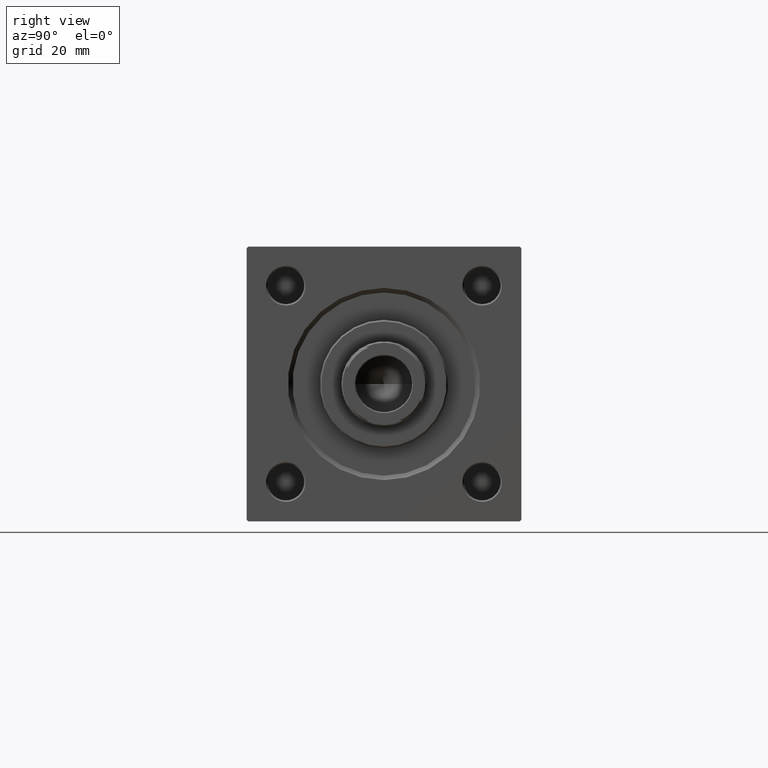
[diagram: clean part render]
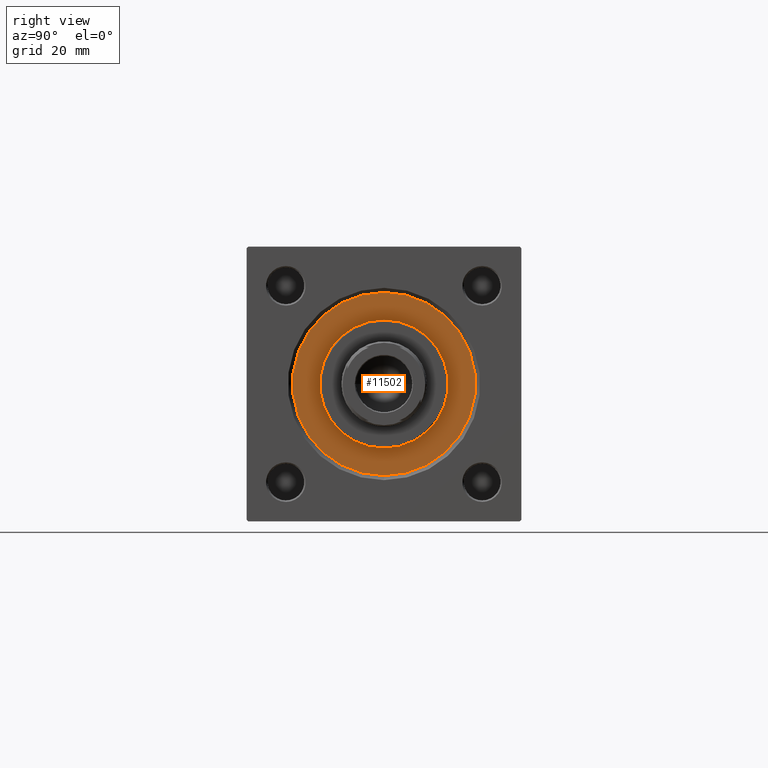
[diagram: same view with one face highlighted and labeled with its STEP entity id]
A machine part, right view. The second image highlights one B-rep face of the part: STEP entity #11502.
In plain terms, the highlighted planar face has unit normal (1, 0, 0).
Its self-contained STEP definition (entity closure, byte-faithful):
#3104 = VERTEX_POINT ( 'NONE', #34823 ) ;
#3107 = EDGE_CURVE ( 'NONE', #39828, #6970, #15510, .T. ) ;
#3173 = EDGE_LOOP ( 'NONE', ( #36676, #42989 ) ) ;
#4813 = CARTESIAN_POINT ( 'NONE',  ( -21.00000000000000000, 0.000000000000000000, 28.69999999999999929 ) ) ;
#6120 = FACE_BOUND ( 'NONE', #10961, .T. ) ;
#6970 = VERTEX_POINT ( 'NONE', #14126 ) ;
#7167 = DIRECTION ( 'NONE',  ( 0.000000000000000000, 0.000000000000000000, 1.000000000000000000 ) ) ;
#9196 = EDGE_CURVE ( 'NONE', #3104, #19670, #40049, .T. ) ;
#10060 = CIRCLE ( 'NONE', #38467, 30.00000000000000000 ) ;
#10694 = EDGE_CURVE ( 'NONE', #19670, #3104, #10060, .T. ) ;
#10961 = EDGE_LOOP ( 'NONE', ( #46789, #12538 ) ) ;
#11225 = CARTESIAN_POINT ( 'NONE',  ( 0.000000000000000000, 0.000000000000000000, 28.69999999999999929 ) ) ;
#11467 = EDGE_CURVE ( 'NONE', #6970, #39828, #35955, .T. ) ;
#11502 = ADVANCED_FACE ( 'NONE', ( #6120, #39912 ), #13984, .T. ) ;
#12538 = ORIENTED_EDGE ( 'NONE', *, *, #11467, .F. ) ;
#13984 = PLANE ( 'NONE',  #36742 ) ;
#14126 = CARTESIAN_POINT ( 'NONE',  ( 21.00000000000000000, 2.571758278209441661E-15, 28.69999999999999929 ) ) ;
#15510 = CIRCLE ( 'NONE', #21996, 21.00000000000000000 ) ;
#17293 = CARTESIAN_POINT ( 'NONE',  ( 0.000000000000000000, 0.000000000000000000, 28.69999999999999929 ) ) ;
#18614 = DIRECTION ( 'NONE',  ( 1.000000000000000000, 0.000000000000000000, 0.000000000000000000 ) ) ;
#19670 = VERTEX_POINT ( 'NONE', #45997 ) ;
#21373 = AXIS2_PLACEMENT_3D ( 'NONE', #50075, #39649, #35834 ) ;
#21996 = AXIS2_PLACEMENT_3D ( 'NONE', #11225, #7167, #18614 ) ;
#22422 = DIRECTION ( 'NONE',  ( 1.000000000000000000, 0.000000000000000000, 0.000000000000000000 ) ) ;
#34823 = CARTESIAN_POINT ( 'NONE',  ( 30.00000000000000000, 3.673940397442059178E-15, 28.69999999999999929 ) ) ;
#35834 = DIRECTION ( 'NONE',  ( 1.000000000000000000, 0.000000000000000000, 0.000000000000000000 ) ) ;
#35955 = CIRCLE ( 'NONE', #49732, 21.00000000000000000 ) ;
#36676 = ORIENTED_EDGE ( 'NONE', *, *, #10694, .T. ) ;
#36742 = AXIS2_PLACEMENT_3D ( 'NONE', #17293, #48035, #43963 ) ;
#36850 = CARTESIAN_POINT ( 'NONE',  ( 0.000000000000000000, 0.000000000000000000, 28.69999999999999929 ) ) ;
#37099 = DIRECTION ( 'NONE',  ( 0.000000000000000000, 0.000000000000000000, 1.000000000000000000 ) ) ;
#38467 = AXIS2_PLACEMENT_3D ( 'NONE', #45526, #41707, #22422 ) ;
#39649 = DIRECTION ( 'NONE',  ( 0.000000000000000000, 0.000000000000000000, 1.000000000000000000 ) ) ;
#39828 = VERTEX_POINT ( 'NONE', #4813 ) ;
#39912 = FACE_OUTER_BOUND ( 'NONE', #3173, .T. ) ;
#40049 = CIRCLE ( 'NONE', #21373, 30.00000000000000000 ) ;
#41707 = DIRECTION ( 'NONE',  ( 0.000000000000000000, 0.000000000000000000, 1.000000000000000000 ) ) ;
#42989 = ORIENTED_EDGE ( 'NONE', *, *, #9196, .T. ) ;
#43963 = DIRECTION ( 'NONE',  ( 1.000000000000000000, 0.000000000000000000, -0.000000000000000000 ) ) ;
#45526 = CARTESIAN_POINT ( 'NONE',  ( 0.000000000000000000, 0.000000000000000000, 28.69999999999999929 ) ) ;
#45997 = CARTESIAN_POINT ( 'NONE',  ( -30.00000000000000000, 0.000000000000000000, 28.69999999999999929 ) ) ;
#46789 = ORIENTED_EDGE ( 'NONE', *, *, #3107, .F. ) ;
#48035 = DIRECTION ( 'NONE',  ( 0.000000000000000000, 0.000000000000000000, 1.000000000000000000 ) ) ;
#48527 = DIRECTION ( 'NONE',  ( 1.000000000000000000, 0.000000000000000000, 0.000000000000000000 ) ) ;
#49732 = AXIS2_PLACEMENT_3D ( 'NONE', #36850, #37099, #48527 ) ;
#50075 = CARTESIAN_POINT ( 'NONE',  ( 0.000000000000000000, 0.000000000000000000, 28.69999999999999929 ) ) ;